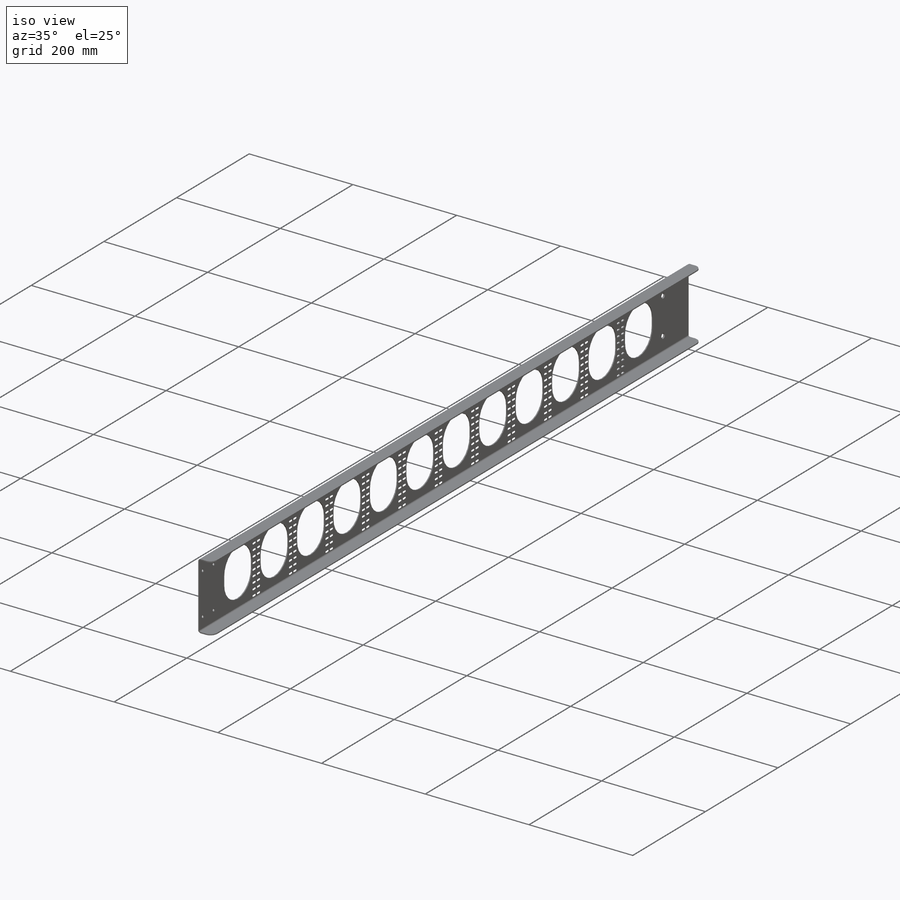
[diagram: iso view]
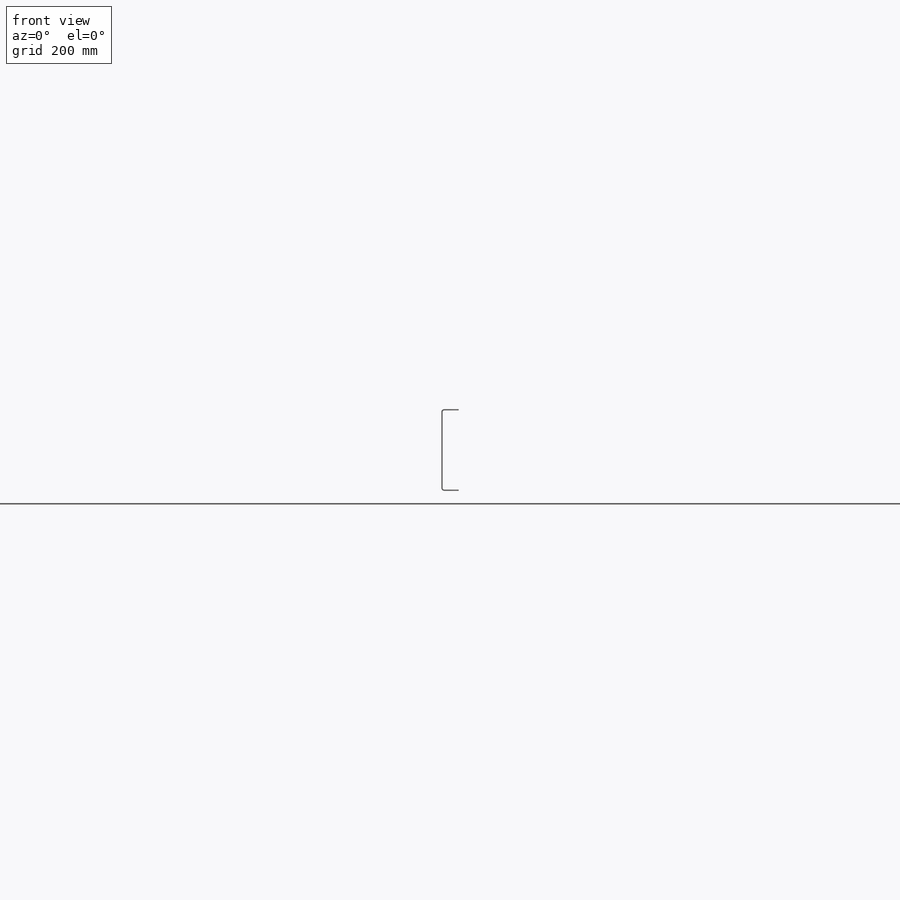
[diagram: front view]
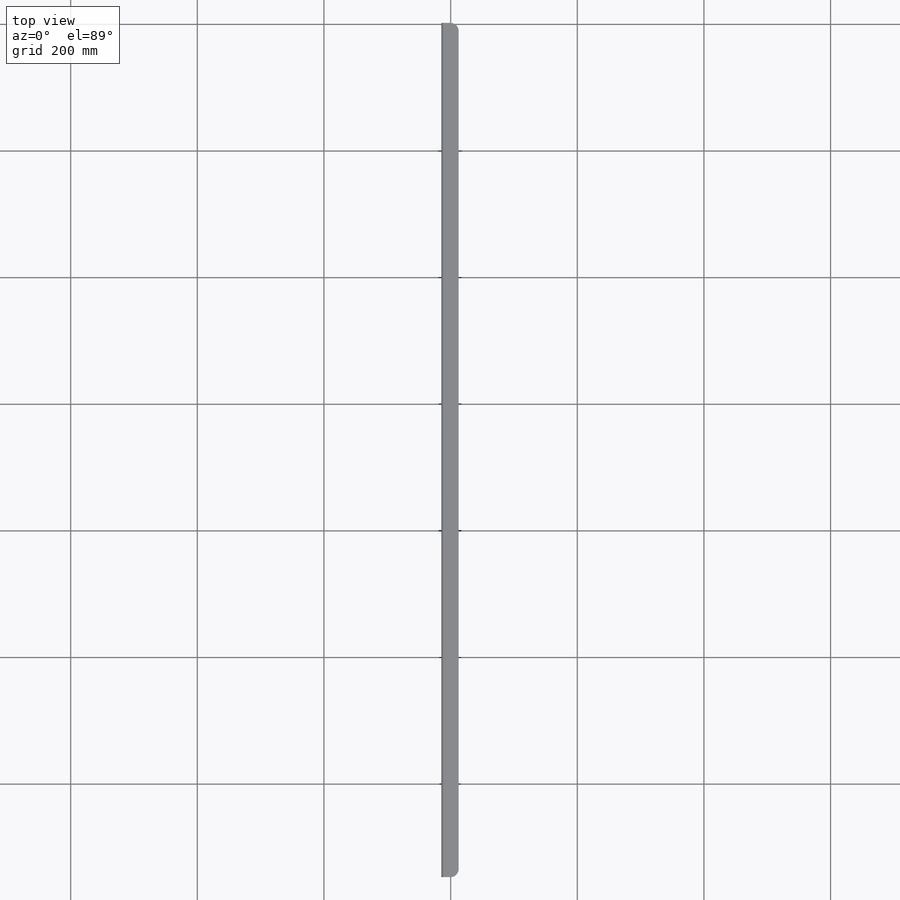
[diagram: top view]
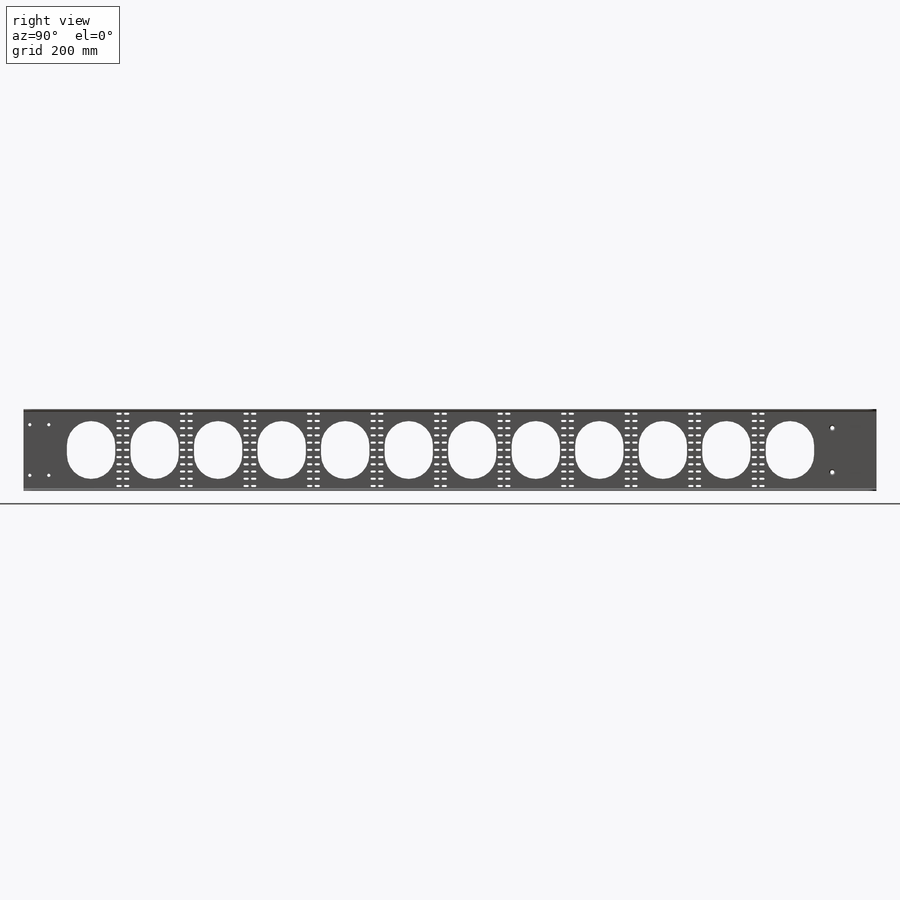
[diagram: right view]
SOLIDWORKS PART (.sldprt)
format: sldprt  version: not decoded by parser v0  size: 1,082,368 bytes
history: native  units: mm
features: sketch x7, pattern_linear x3, hole x2, cut_extrude x2, material x1, fillet x1 (+11 scaffold rows collapsed)
feature tree (27):
  scaffold x11  (default folders/planes/origin — collapsed)
  material  "6061-T6 (SS)"
  sketch  "Sketch1"  dims[c1.D3=2.54mm c1.D1=125.0mm c1.D2=25.4mm c2.D1=~1347.233859mm c2.D5=2.0mm c2.D6=1.0mm c2.D7=5.0mm]
  hole  "CSK for #10 Flat Head Machine Screw1"  Diameter=5.1054mm Depth=2mm
  sketch  "Sketch3"  dims[D1=70.0mm D2=70.0mm]
  sketch  "Sketch2"  dims[hole-wizard template sketch: 55 standard entries collapsed; hole parameters kept: c17.Thru Hole Depth=2.0mm c17.Near C'Sink Dia.=9.779mm c17.D4=~3.666174mm c17.Near C'Sink Angle=82.0deg]
  fillet  "Fillet1"  Radius=13mm
  hole  "#10 Clearance Hole1"  Diameter=4.9784mm Depth=27.4mm
  sketch  "Sketch5"  dims[D1=10.0mm D2=30.0mm D3=80.0mm]
  sketch  "Sketch4"  dims[hole-wizard template sketch: 60 standard entries collapsed; hole parameters kept: c18.Thru Hole Depth=27.4mm]
  sketch  "Sketch6"  dims[c1.D1=~6.301853mm c1.D2=4.9784mm c2.D1=25.0mm c2.D2=25.0mm c3.D1=1180.0mm c3.D2=~76.333333mm c3.D3=15.0mm c3.D4=24.0mm]
  cut_extrude  "Cut-Extrude1"  [1 undecoded]
  pattern_linear  "LPattern1"  Count1=12 Count2=1 Spacing1=100.333333mm Spacing2=10mm
  sketch  "Sketch7"  dims[D1=116.0mm D2=~2.340909mm D3=5.0mm D4=3.175mm D5=3.5mm]
  cut_extrude  "Cut-Extrude2"  [1 undecoded]
  pattern_linear  "LPattern2"  Count1=11 Count2=1 Spacing1=11.411364mm Spacing2=10mm
  pattern_linear  "LPattern3"  Count1=11 Count2=1 Spacing1=100.333333mm Spacing2=10mm
decode coverage: 13 of 15 modeling features carry decoded parameters
note: ~ marks probable driven/reference dimensions
note: 2 parameter values undecoded
note: suppression state not decoded; provenance and decode notes live in map.json
